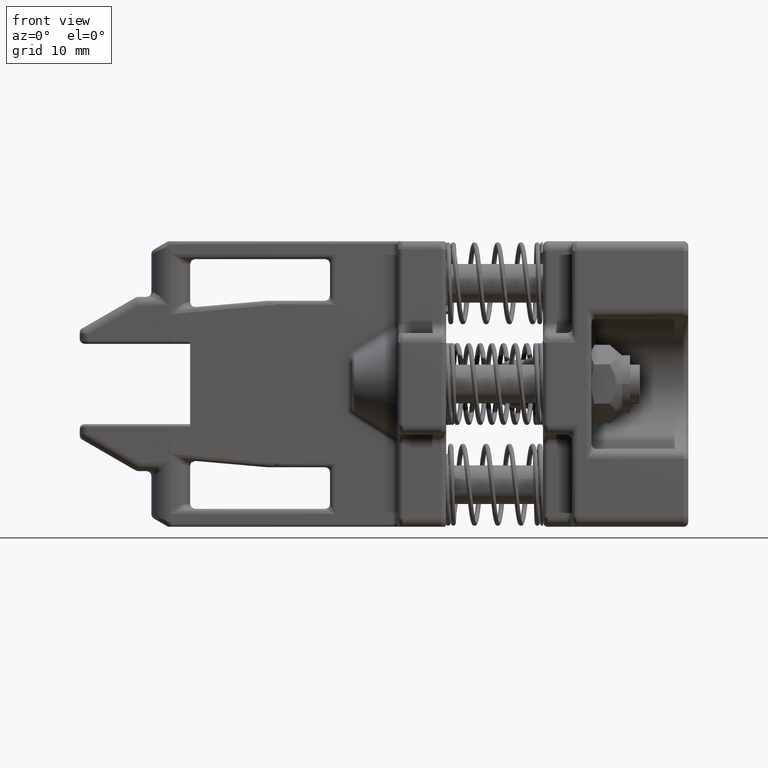
[diagram: clean part render]
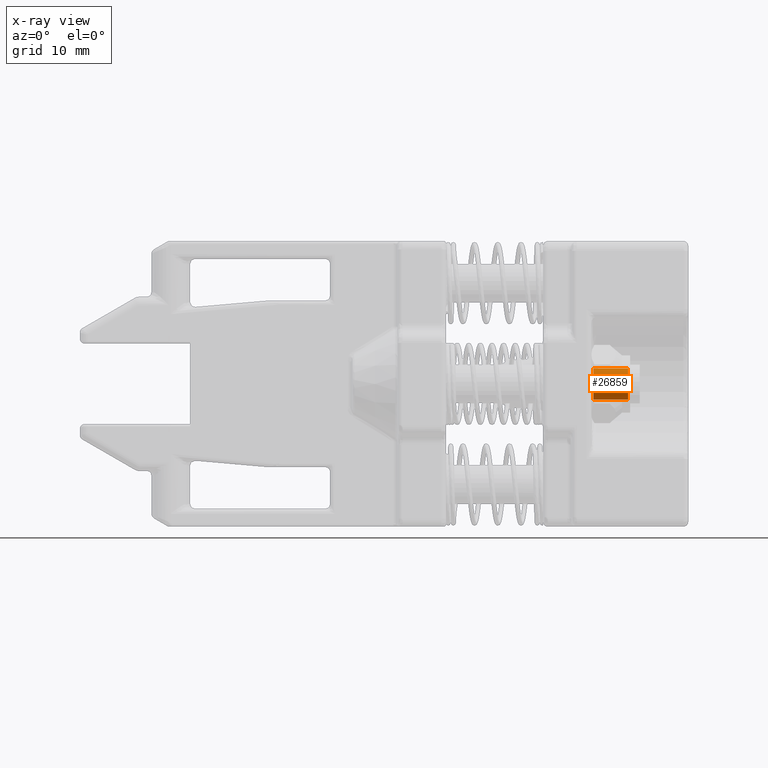
[diagram: x-ray — body ghosted, one internal face saturated and labeled with its STEP entity id]
A machine part, front view, then the same camera in x-ray: the body is ghosted and one INTERNAL B-rep face — a face not visible from any outside direction — is saturated and labeled: STEP entity #26859.
In plain terms, the highlighted cylindrical surface (bore or boss wall) has radius 1.621 mm, axis along (-1, -0, -0).
Its self-contained STEP definition (entity closure, byte-faithful):
#2240 = DIRECTION ( 'NONE',  ( 0.0000000000000000000, -1.000000000000000000, 0.0000000000000000000 ) ) ;
#2938 = CARTESIAN_POINT ( 'NONE',  ( 0.9131397637795273200, -0.4094488151430144000, 1.290651968503937100E-009 ) ) ;
#3189 = DIRECTION ( 'NONE',  ( 1.000000000000000000, 1.282514000000000100E-016, 1.024591000000000000E-029 ) ) ;
#3271 = DIRECTION ( 'NONE',  ( 0.0000000000000000000, -1.000000000000000000, 0.0000000000000000000 ) ) ;
#3555 = FACE_OUTER_BOUND ( 'NONE', #8164, .T. ) ;
#7025 = EDGE_CURVE ( 'NONE', #31422, #31422, #18922, .T. ) ;
#8164 = EDGE_LOOP ( 'NONE', ( #18461 ) ) ;
#9791 = DIRECTION ( 'NONE',  ( -1.000000000000000000, -1.282514000000000100E-016, -1.024591000000000000E-029 ) ) ;
#12107 = AXIS2_PLACEMENT_3D ( 'NONE', #31615, #9791, #3271 ) ;
#12198 = DIRECTION ( 'NONE',  ( 0.0000000000000000000, -1.000000000000000000, 0.0000000000000000000 ) ) ;
#14353 = AXIS2_PLACEMENT_3D ( 'NONE', #17474, #39840, #2240 ) ;
#15184 = CARTESIAN_POINT ( 'NONE',  ( 0.9131397637795273200, -0.4732677127808096500, 1.290651968503937100E-009 ) ) ;
#17282 = EDGE_CURVE ( 'NONE', #17377, #17377, #17653, .T. ) ;
#17377 = VERTEX_POINT ( 'NONE', #15184 ) ;
#17474 = CARTESIAN_POINT ( 'NONE',  ( 1.353990650644191400, -0.4094488151430143400, 1.290651968503937100E-009 ) ) ;
#17653 = CIRCLE ( 'NONE', #31739, 0.06381889763779524700 ) ;
#18461 = ORIENTED_EDGE ( 'NONE', *, *, #17282, .F. ) ;
#18922 = CIRCLE ( 'NONE', #12107, 0.06381889763779524700 ) ;
#20095 = FACE_OUTER_BOUND ( 'NONE', #30048, .T. ) ;
#24289 = CARTESIAN_POINT ( 'NONE',  ( 1.053395669291338400, -0.4732677127808096500, 1.290651968503937100E-009 ) ) ;
#26859 = ADVANCED_FACE ( 'NONE', ( #20095, #3555 ), #33217, .F. ) ;
#30048 = EDGE_LOOP ( 'NONE', ( #36614 ) ) ;
#31422 = VERTEX_POINT ( 'NONE', #24289 ) ;
#31615 = CARTESIAN_POINT ( 'NONE',  ( 1.053395669291338400, -0.4094488151430144000, 1.290651968503937100E-009 ) ) ;
#31739 = AXIS2_PLACEMENT_3D ( 'NONE', #2938, #3189, #12198 ) ;
#33217 = CYLINDRICAL_SURFACE ( 'NONE', #14353, 0.06381889763779531600 ) ;
#36614 = ORIENTED_EDGE ( 'NONE', *, *, #7025, .F. ) ;
#39840 = DIRECTION ( 'NONE',  ( -1.000000000000000000, -1.282514000000000100E-016, -1.024591000000000000E-029 ) ) ;